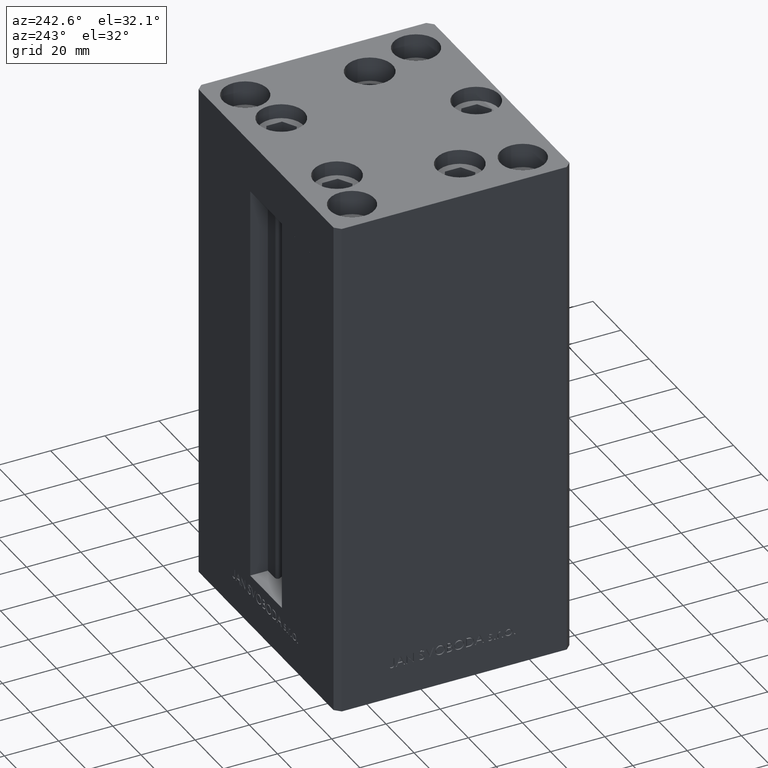
[diagram: clean part render]
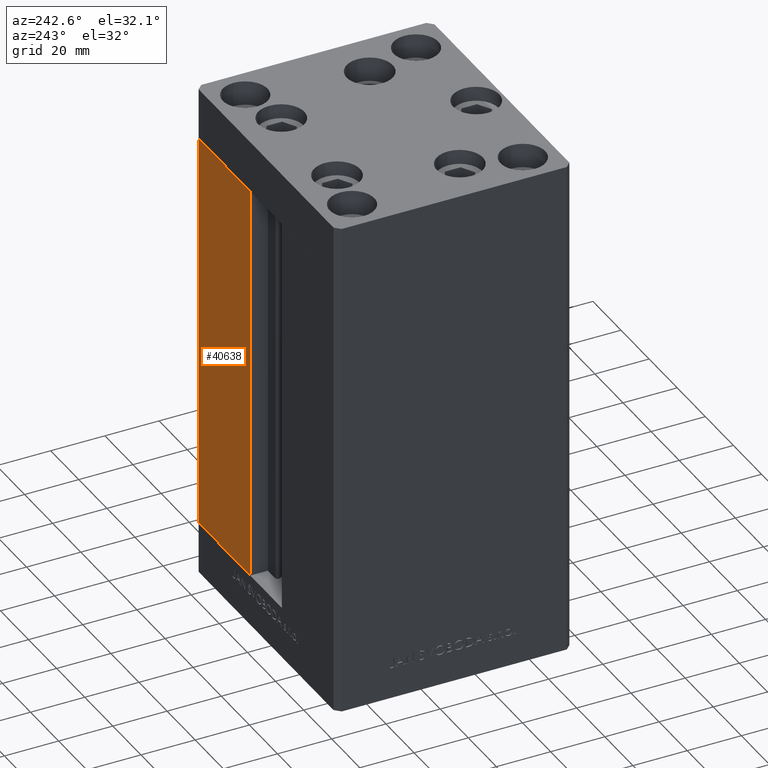
[diagram: same view with one face highlighted and labeled with its STEP entity id]
A machine part, auxiliary view. The second image highlights one B-rep face of the part: STEP entity #40638.
In plain terms, the highlighted planar face has unit normal (0, -1, 0).
Its self-contained STEP definition (entity closure, byte-faithful):
#180 = VERTEX_POINT ( 'NONE', #22468 ) ;
#2246 = AXIS2_PLACEMENT_3D ( 'NONE', #9966, #40335, #32791 ) ;
#3571 = ORIENTED_EDGE ( 'NONE', *, *, #35648, .T. ) ;
#6096 = DIRECTION ( 'NONE',  ( -1.000000000000000000, 0.000000000000000000, 0.000000000000000000 ) ) ;
#6409 = DIRECTION ( 'NONE',  ( -0.000000000000000000, -0.000000000000000000, 1.000000000000000000 ) ) ;
#8625 = VERTEX_POINT ( 'NONE', #14978 ) ;
#9798 = ORIENTED_EDGE ( 'NONE', *, *, #16589, .T. ) ;
#9966 = CARTESIAN_POINT ( 'NONE',  ( -11.24999999999999822, 43.50000000000000000, 148.5000000000000000 ) ) ;
#13220 = PLANE ( 'NONE',  #2246 ) ;
#13620 = CARTESIAN_POINT ( 'NONE',  ( -11.24999999999999822, 43.50000000000000000, 0.000000000000000000 ) ) ;
#14978 = CARTESIAN_POINT ( 'NONE',  ( 11.24999999999999112, 43.50000000000000000, 148.5000000000000000 ) ) ;
#15026 = VERTEX_POINT ( 'NONE', #30517 ) ;
#15477 = VECTOR ( 'NONE', #6409, 1000.000000000000000 ) ;
#16589 = EDGE_CURVE ( 'NONE', #15026, #8625, #26192, .T. ) ;
#17785 = EDGE_CURVE ( 'NONE', #8625, #180, #44740, .T. ) ;
#18507 = LINE ( 'NONE', #41099, #35165 ) ;
#21263 = FACE_OUTER_BOUND ( 'NONE', #44729, .T. ) ;
#21923 = VECTOR ( 'NONE', #40984, 1000.000000000000000 ) ;
#22468 = CARTESIAN_POINT ( 'NONE',  ( 48.00000000000000711, 43.50000000000000000, 148.5000000000000000 ) ) ;
#25157 = LINE ( 'NONE', #13620, #34288 ) ;
#26192 = LINE ( 'NONE', #29248, #15477 ) ;
#29248 = CARTESIAN_POINT ( 'NONE',  ( 11.24999999999999822, 43.50000000000000000, 0.000000000000000000 ) ) ;
#30517 = CARTESIAN_POINT ( 'NONE',  ( 11.24999999999999822, 43.50000000000000000, 0.000000000000000000 ) ) ;
#32791 = DIRECTION ( 'NONE',  ( 0.000000000000000000, -0.000000000000000000, -1.000000000000000000 ) ) ;
#34254 = CARTESIAN_POINT ( 'NONE',  ( 48.00000000000000711, 43.50000000000000000, 0.000000000000000000 ) ) ;
#34288 = VECTOR ( 'NONE', #6096, 1000.000000000000000 ) ;
#34407 = VERTEX_POINT ( 'NONE', #34254 ) ;
#35165 = VECTOR ( 'NONE', #37815, 1000.000000000000000 ) ;
#35648 = EDGE_CURVE ( 'NONE', #34407, #15026, #25157, .T. ) ;
#37815 = DIRECTION ( 'NONE',  ( -0.000000000000000000, -0.000000000000000000, -1.000000000000000000 ) ) ;
#40335 = DIRECTION ( 'NONE',  ( 0.000000000000000000, -1.000000000000000000, 0.000000000000000000 ) ) ;
#40638 = ADVANCED_FACE ( 'NONE', ( #21263 ), #13220, .F. ) ;
#40735 = CARTESIAN_POINT ( 'NONE',  ( -11.24999999999999822, 43.50000000000000000, 148.5000000000000000 ) ) ;
#40984 = DIRECTION ( 'NONE',  ( 1.000000000000000000, 0.000000000000000000, 0.000000000000000000 ) ) ;
#41099 = CARTESIAN_POINT ( 'NONE',  ( 48.00000000000000711, 43.50000000000000000, 148.5000000000000000 ) ) ;
#43308 = ORIENTED_EDGE ( 'NONE', *, *, #17785, .T. ) ;
#44156 = ORIENTED_EDGE ( 'NONE', *, *, #47975, .T. ) ;
#44729 = EDGE_LOOP ( 'NONE', ( #3571, #9798, #43308, #44156 ) ) ;
#44740 = LINE ( 'NONE', #40735, #21923 ) ;
#47975 = EDGE_CURVE ( 'NONE', #180, #34407, #18507, .T. ) ;